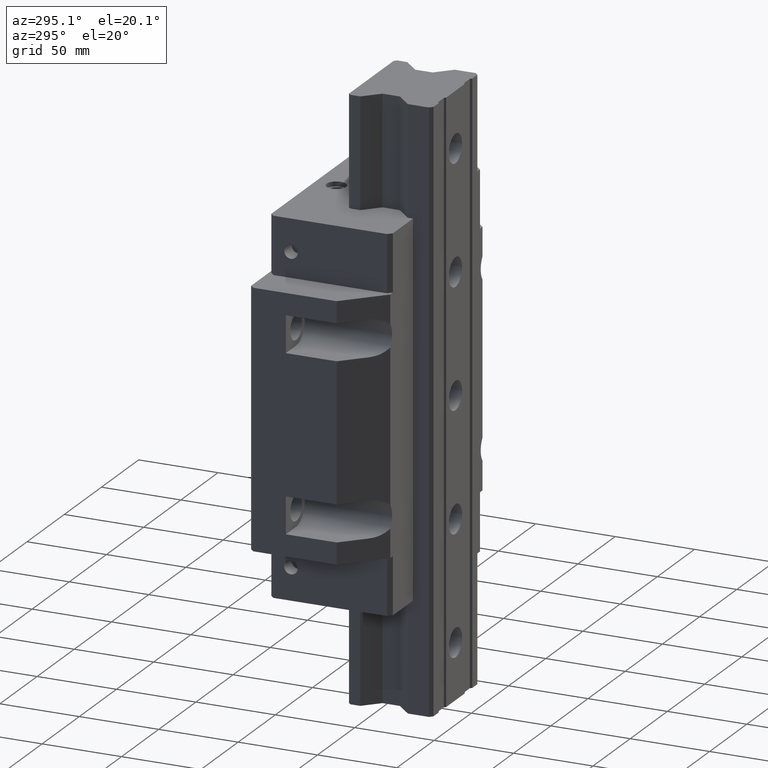
[diagram: clean part render]
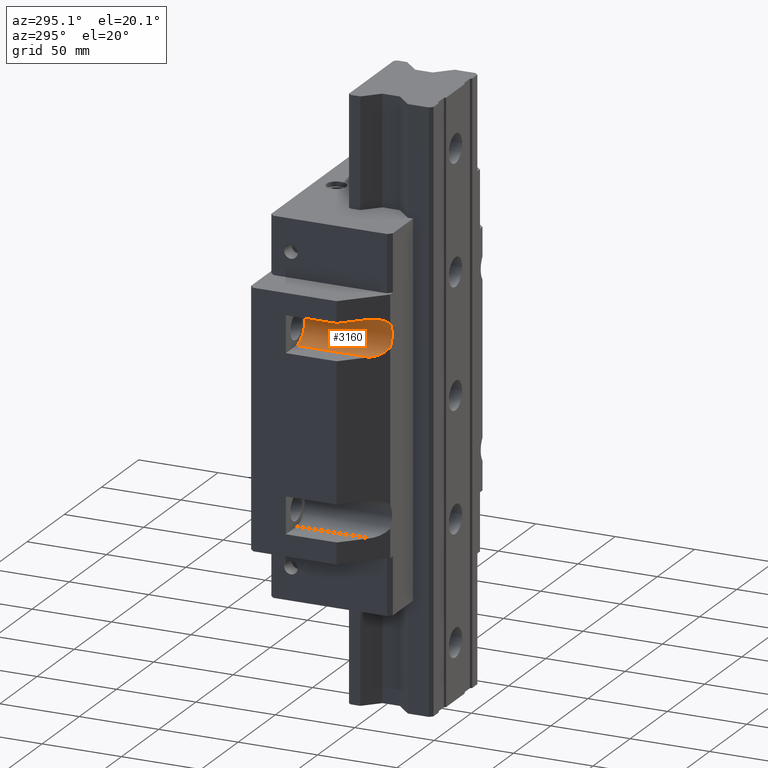
[diagram: same view with one face highlighted and labeled with its STEP entity id]
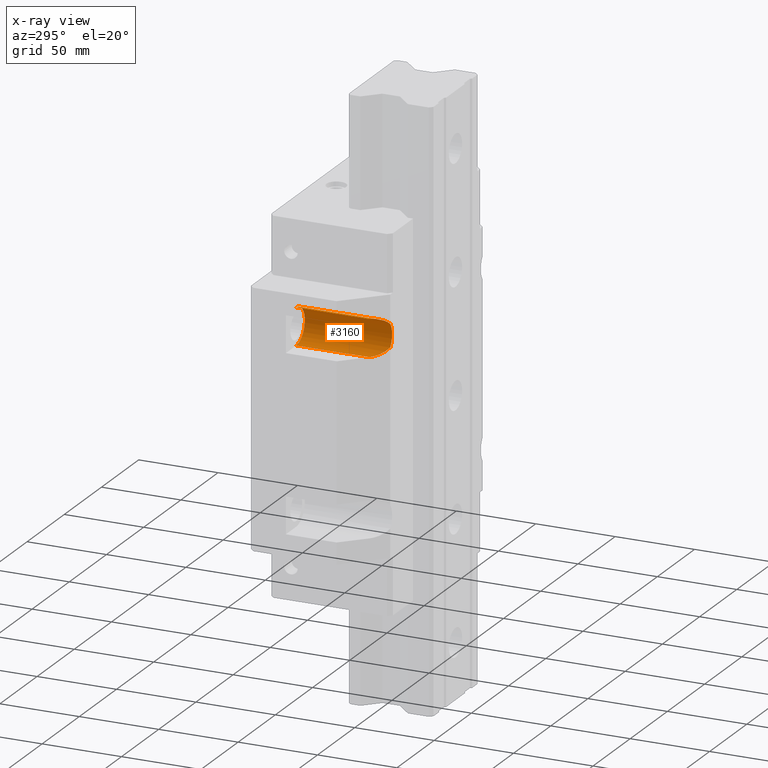
[diagram: x-ray of the same camera — body ghosted, the highlighted face saturated]
A machine part, auxiliary view. The second image highlights one B-rep face of the part: STEP entity #3160.
The next image is the same camera in x-ray: the body ghosted, the highlighted face saturated — about 0% of this face is hidden behind the body in this view.
In plain terms, the highlighted cylindrical surface (edge-blend (fillet) strip) has radius 11.5 mm, axis along (0, 1, 0).
Its self-contained STEP definition (entity closure, byte-faithful):
#856=CARTESIAN_POINT('',(-7.1E1,-7.7999992E1,5.5E1));
#857=DIRECTION('',(0.E0,-1.E0,0.E0));
#858=DIRECTION('',(7.826034782609E-1,0.E0,-6.225205183879E-1));
#859=AXIS2_PLACEMENT_3D('',#856,#857,#858);
#909=CARTESIAN_POINT('',(-7.1E1,-6.9000052E1,6.65E1));
#910=CARTESIAN_POINT('',(-6.930549395311E1,-7.069455804688E1,6.65E1));
#911=CARTESIAN_POINT('',(-6.611164746775E1,-7.388840453225E1,6.577408161649E1));
#912=CARTESIAN_POINT('',(-6.326651662230E1,-7.673353537770E1,6.375111558354E1));
#913=CARTESIAN_POINT('',(-6.200006E1,-7.7999992E1,6.215898596146E1));
#915=CARTESIAN_POINT('',(-6.200006E1,-7.7999992E1,4.784101403854E1));
#916=CARTESIAN_POINT('',(-6.326651662230E1,-7.673353537770E1,4.624888441646E1));
#917=CARTESIAN_POINT('',(-6.611164746775E1,-7.388840453225E1,4.422591838351E1));
#918=CARTESIAN_POINT('',(-6.930549395311E1,-7.069455804688E1,4.35E1));
#919=CARTESIAN_POINT('',(-7.1E1,-6.9000052E1,4.35E1));
#921=DIRECTION('',(0.E0,1.E0,0.E0));
#922=VECTOR('',#921,4.6000052E1);
#923=CARTESIAN_POINT('',(-7.1E1,-6.9000052E1,4.35E1));
#924=LINE('',#923,#922);
#925=DIRECTION('',(0.E0,-1.E0,0.E0));
#926=VECTOR('',#925,4.6000052E1);
#927=CARTESIAN_POINT('',(-7.1E1,-2.3E1,6.65E1));
#928=LINE('',#927,#926);
#1012=CARTESIAN_POINT('',(-7.1E1,-2.3E1,5.5E1));
#1013=DIRECTION('',(0.E0,1.E0,0.E0));
#1014=DIRECTION('',(0.E0,0.E0,1.E0));
#1015=AXIS2_PLACEMENT_3D('',#1012,#1013,#1014);
#1723=CARTESIAN_POINT('',(-6.200006E1,-7.7999992E1,4.784101403854E1));
#1724=VERTEX_POINT('',#1723);
#1725=CARTESIAN_POINT('',(-6.200006E1,-7.7999992E1,6.215898596146E1));
#1726=VERTEX_POINT('',#1725);
#1944=VERTEX_POINT('',#909);
#1947=VERTEX_POINT('',#919);
#1948=CARTESIAN_POINT('',(-7.1E1,-2.3E1,4.35E1));
#1949=VERTEX_POINT('',#1948);
#1950=CARTESIAN_POINT('',(-7.1E1,-2.3E1,6.65E1));
#1951=VERTEX_POINT('',#1950);
#3143=CARTESIAN_POINT('',(-7.1E1,-2.3E1,5.5E1));
#3144=DIRECTION('',(0.E0,1.E0,0.E0));
#3145=DIRECTION('',(0.E0,0.E0,1.E0));
#3146=AXIS2_PLACEMENT_3D('',#3143,#3144,#3145);
#3147=CYLINDRICAL_SURFACE('',#3146,1.15E1);
#3149=ORIENTED_EDGE('',*,*,#3148,.T.);
#3150=ORIENTED_EDGE('',*,*,#3069,.F.);
#3151=ORIENTED_EDGE('',*,*,#3130,.T.);
#3153=ORIENTED_EDGE('',*,*,#3152,.T.);
#3155=ORIENTED_EDGE('',*,*,#3154,.F.);
#3157=ORIENTED_EDGE('',*,*,#3156,.T.);
#3158=EDGE_LOOP('',(#3149,#3150,#3151,#3153,#3155,#3157));
#3159=FACE_OUTER_BOUND('',#3158,.F.);
#3160=ADVANCED_FACE('',(#3159),#3147,.F.);
#860=CIRCLE('',#859,1.15E1);
#914=B_SPLINE_CURVE_WITH_KNOTS('',3,(#909,#910,#911,#912,#913),.UNSPECIFIED.,
.F.,.F.,(4,1,4),(0.E0,5.E-1,1.E0),.UNSPECIFIED.);
#920=B_SPLINE_CURVE_WITH_KNOTS('',3,(#915,#916,#917,#918,#919),.UNSPECIFIED.,
.F.,.F.,(4,1,4),(0.E0,5.E-1,1.E0),.UNSPECIFIED.);
#1016=CIRCLE('',#1015,1.15E1);
#3069=EDGE_CURVE('',#1724,#1726,#860,.T.);
#3130=EDGE_CURVE('',#1724,#1947,#920,.T.);
#3148=EDGE_CURVE('',#1944,#1726,#914,.T.);
#3152=EDGE_CURVE('',#1947,#1949,#924,.T.);
#3154=EDGE_CURVE('',#1951,#1949,#1016,.T.);
#3156=EDGE_CURVE('',#1951,#1944,#928,.T.);